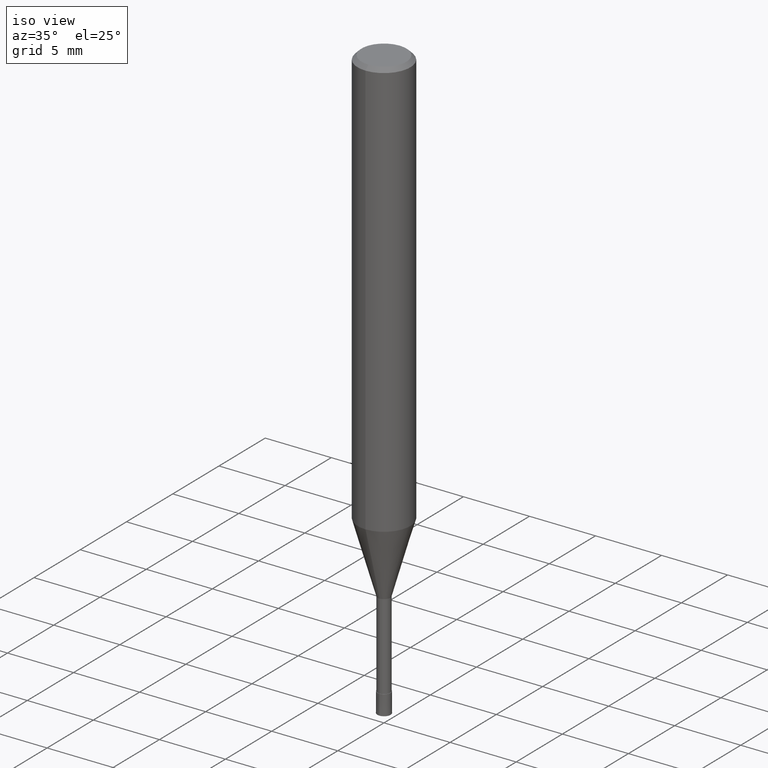
[diagram: clean part render]
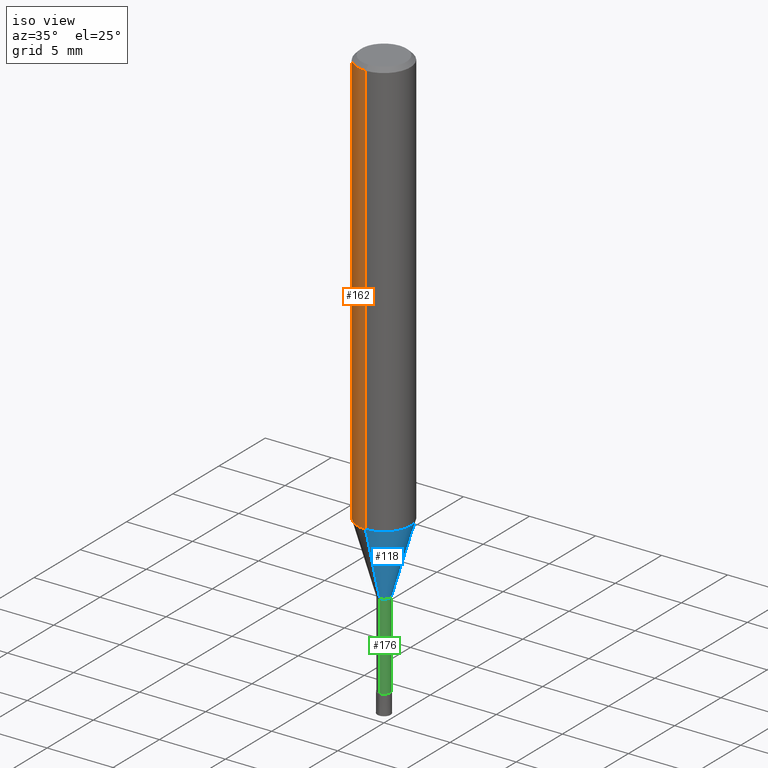
[diagram: same view with three faces highlighted in distinct colors, each labeled with its STEP entity id]
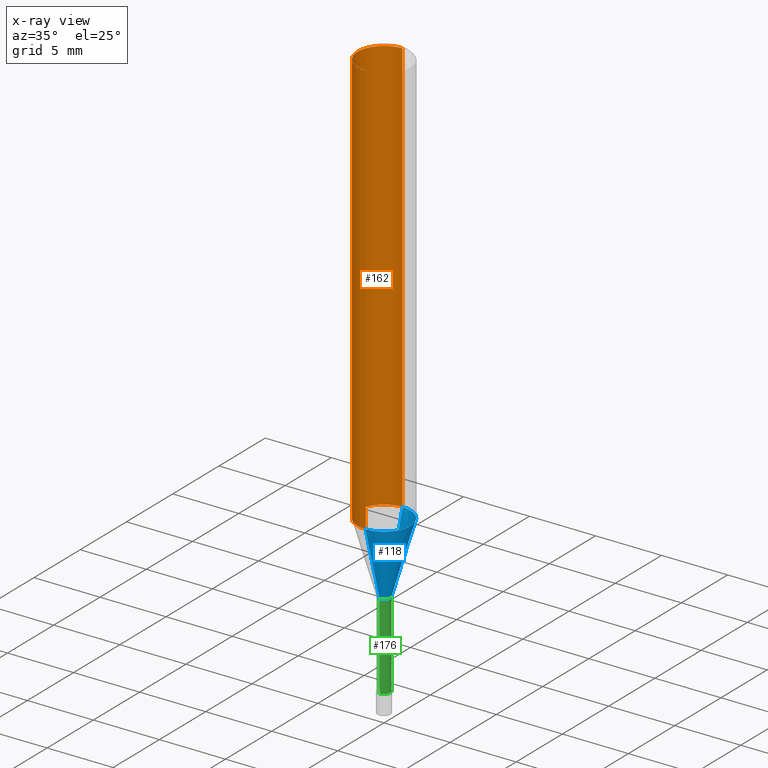
[diagram: x-ray of the same camera — body ghosted, the three highlighted faces saturated]
A machine part, iso view with three faces highlighted in distinct colors.
The next image is the same camera in x-ray (body ghosted, the three faces saturated) — at least one of them is partly hidden behind the body in this view.
Their STEP definitions:

[orange] entity #162 — the highlighted cylindrical surface (edge-blend (fillet) strip) has radius 2 mm, axis along (-0, -0, 1).
#92=EDGE_CURVE('',#120,#168,#229,.T.);
#120=VERTEX_POINT('',#261);
#134=EDGE_CURVE('',#158,#206,#277,.T.);
#158=VERTEX_POINT('',#302);
#162=ADVANCED_FACE('',(#306),#307,.T.);
#168=VERTEX_POINT('',#313);
#172=EDGE_CURVE('',#158,#168,#317,.T.);
#182=EDGE_CURVE('',#206,#120,#329,.T.);
#206=VERTEX_POINT('',#357);
#229=LINE('',#375,#376);
#261=CARTESIAN_POINT('',(0.0,2.0,-0.300000000000001));
#277=LINE('',#435,#436);
#302=CARTESIAN_POINT('',(2.44921270764475E-016,-2.0,-31.682));
#306=FACE_OUTER_BOUND('',#472,.T.);
#307=CYLINDRICAL_SURFACE('',#473,2.0);
#313=CARTESIAN_POINT('',(0.0,2.0,-31.682));
#317=CIRCLE('',#486,2.0);
#329=CIRCLE('',#502,2.0);
#357=CARTESIAN_POINT('',(2.44921270764475E-016,-2.0,-0.300000000000001));
#375=CARTESIAN_POINT('',(-2.44921270764475E-016,2.0,-15.991));
#376=VECTOR('',#542,1.0);
#435=CARTESIAN_POINT('',(2.44921270764475E-016,-2.0,-15.991));
#436=VECTOR('',#611,1.0);
#472=EDGE_LOOP('',(#630,#631,#632,#633));
#473=AXIS2_PLACEMENT_3D('',#634,#635,#636);
#486=AXIS2_PLACEMENT_3D('',#643,#644,#645);
#502=AXIS2_PLACEMENT_3D('',#666,#667,#668);
#542=DIRECTION('',(0.0,0.0,-1.0));
#611=DIRECTION('',(-0.0,-0.0,1.0));
#630=ORIENTED_EDGE('',*,*,#92,.T.);
#631=ORIENTED_EDGE('',*,*,#172,.F.);
#632=ORIENTED_EDGE('',*,*,#134,.T.);
#633=ORIENTED_EDGE('',*,*,#182,.T.);
#634=CARTESIAN_POINT('',(0.0,0.0,-15.991));
#635=DIRECTION('',(-0.0,-0.0,1.0));
#636=DIRECTION('',(0.0,1.0,0.0));
#643=CARTESIAN_POINT('',(0.0,0.0,-31.682));
#644=DIRECTION('',(0.0,0.0,-1.0));
#645=DIRECTION('',(0.0,1.0,0.0));
#666=CARTESIAN_POINT('',(0.0,0.0,-0.300000000000001));
#667=DIRECTION('',(0.0,0.0,-1.0));
#668=DIRECTION('',(0.0,1.0,0.0));

[blue] entity #118 — the highlighted conical surface has half-angle 16.001 deg.
#114=VERTEX_POINT('',#254);
#118=ADVANCED_FACE('',(#258),#259,.T.);
#124=EDGE_CURVE('',#144,#140,#265,.T.);
#140=VERTEX_POINT('',#283);
#144=VERTEX_POINT('',#287);
#152=EDGE_CURVE('',#114,#144,#295,.T.);
#166=EDGE_CURVE('',#114,#188,#311,.T.);
#188=VERTEX_POINT('',#336);
#200=EDGE_CURVE('',#140,#188,#350,.T.);
#254=CARTESIAN_POINT('',(0.0,1.99995,-31.682));
#258=FACE_OUTER_BOUND('',#412,.T.);
#259=CONICAL_SURFACE('',#413,1.23745,0.279267977304115);
#265=CIRCLE('',#421,0.47495);
#283=CARTESIAN_POINT('',(5.81626787747938E-017,-0.47495,-37.0));
#287=CARTESIAN_POINT('',(0.0,0.47495,-37.0));
#295=LINE('',#460,#461);
#311=CIRCLE('',#479,1.99995);
#336=CARTESIAN_POINT('',(2.44915147732706E-016,-1.99995,-31.682));
#350=LINE('',#527,#528);
#412=EDGE_LOOP('',(#579,#580,#581,#582));
#413=AXIS2_PLACEMENT_3D('',#583,#584,#585);
#421=AXIS2_PLACEMENT_3D('',#589,#590,#591);
#460=CARTESIAN_POINT('',(-1.5153891325375E-016,1.23745,-34.341));
#461=VECTOR('',#622,1.0);
#479=AXIS2_PLACEMENT_3D('',#640,#641,#642);
#527=CARTESIAN_POINT('',(1.5153891325375E-016,-1.23745,-34.341));
#528=VECTOR('',#694,1.0);
#579=ORIENTED_EDGE('',*,*,#152,.F.);
#580=ORIENTED_EDGE('',*,*,#166,.T.);
#581=ORIENTED_EDGE('',*,*,#200,.F.);
#582=ORIENTED_EDGE('',*,*,#124,.F.);
#583=CARTESIAN_POINT('',(0.0,0.0,-34.341));
#584=DIRECTION('',(-0.0,-0.0,1.0));
#585=DIRECTION('',(0.0,1.0,0.0));
#589=CARTESIAN_POINT('',(0.0,0.0,-37.0));
#590=DIRECTION('',(0.0,0.0,-1.0));
#591=DIRECTION('',(0.0,1.0,0.0));
#622=DIRECTION('',(3.37565264353533E-017,-0.275652060190515,-0.961257479405349));
#640=CARTESIAN_POINT('',(0.0,0.0,-31.682));
#641=DIRECTION('',(0.0,0.0,-1.0));
#642=DIRECTION('',(0.0,1.0,0.0));
#694=DIRECTION('',(3.37565264353533E-017,-0.275652060190515,0.961257479405349));

[green] entity #176 — the highlighted cylindrical surface (edge-blend (fillet) strip) has radius 0.4749 mm, axis along (-0, -0, 1).
#122=EDGE_CURVE('',#148,#170,#263,.T.);
#124=EDGE_CURVE('',#144,#140,#265,.T.);
#140=VERTEX_POINT('',#283);
#144=VERTEX_POINT('',#287);
#148=VERTEX_POINT('',#291);
#170=VERTEX_POINT('',#315);
#176=ADVANCED_FACE('',(#321),#322,.T.);
#184=EDGE_CURVE('',#144,#148,#331,.T.);
#190=EDGE_CURVE('',#170,#140,#338,.T.);
#263=CIRCLE('',#418,0.47495);
#265=CIRCLE('',#421,0.47495);
#283=CARTESIAN_POINT('',(5.81626787747938E-017,-0.47495,-37.0));
#287=CARTESIAN_POINT('',(0.0,0.47495,-37.0));
#291=CARTESIAN_POINT('',(0.0,0.47495,-43.5));
#315=CARTESIAN_POINT('',(5.81626787747938E-017,-0.47495,-43.5));
#321=FACE_OUTER_BOUND('',#491,.T.);
#322=CYLINDRICAL_SURFACE('',#492,0.47495);
#331=LINE('',#505,#506);
#338=LINE('',#514,#515);
#418=AXIS2_PLACEMENT_3D('',#586,#587,#588);
#421=AXIS2_PLACEMENT_3D('',#589,#590,#591);
#491=EDGE_LOOP('',(#650,#651,#652,#653));
#492=AXIS2_PLACEMENT_3D('',#654,#655,#656);
#505=CARTESIAN_POINT('',(-5.81626787747938E-017,0.47495,-40.25));
#506=VECTOR('',#669,1.0);
#514=CARTESIAN_POINT('',(5.81626787747938E-017,-0.47495,-40.25));
#515=VECTOR('',#676,1.0);
#586=CARTESIAN_POINT('',(0.0,0.0,-43.5));
#587=DIRECTION('',(0.0,0.0,-1.0));
#588=DIRECTION('',(0.0,1.0,0.0));
#589=CARTESIAN_POINT('',(0.0,0.0,-37.0));
#590=DIRECTION('',(0.0,0.0,-1.0));
#591=DIRECTION('',(0.0,1.0,0.0));
#650=ORIENTED_EDGE('',*,*,#184,.F.);
#651=ORIENTED_EDGE('',*,*,#124,.T.);
#652=ORIENTED_EDGE('',*,*,#190,.F.);
#653=ORIENTED_EDGE('',*,*,#122,.F.);
#654=CARTESIAN_POINT('',(0.0,0.0,-40.25));
#655=DIRECTION('',(-0.0,-0.0,1.0));
#656=DIRECTION('',(0.0,1.0,0.0));
#669=DIRECTION('',(0.0,0.0,-1.0));
#676=DIRECTION('',(-0.0,-0.0,1.0));